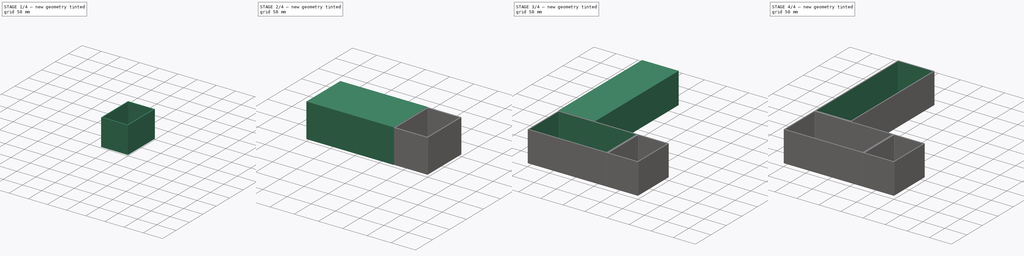
[diagram: build sequence overview — one tinted view per stage of 4, left to right]
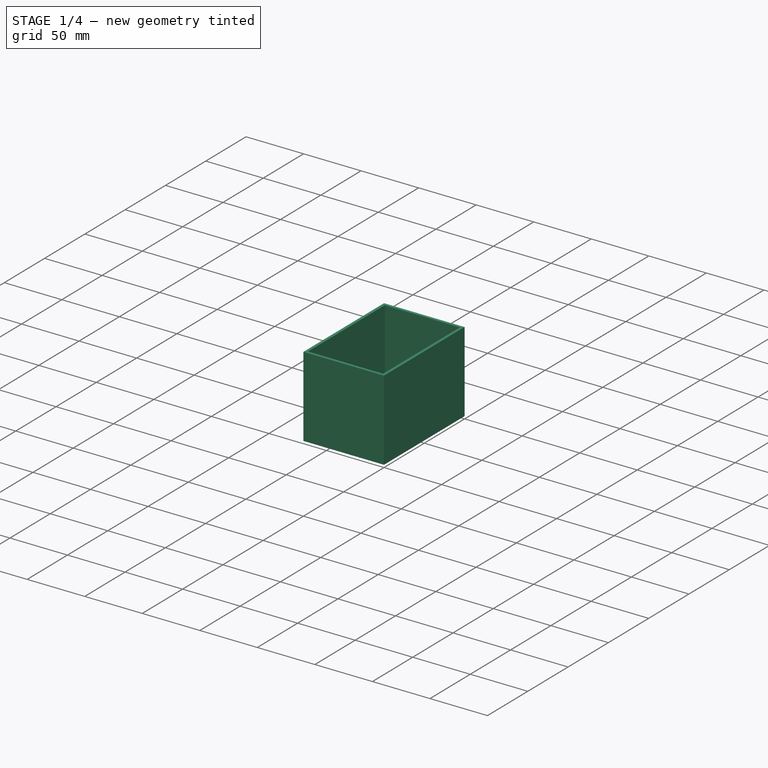
[diagram: stage 1 of 4 — iso view after this stage's code; geometry added in this stage tinted green]
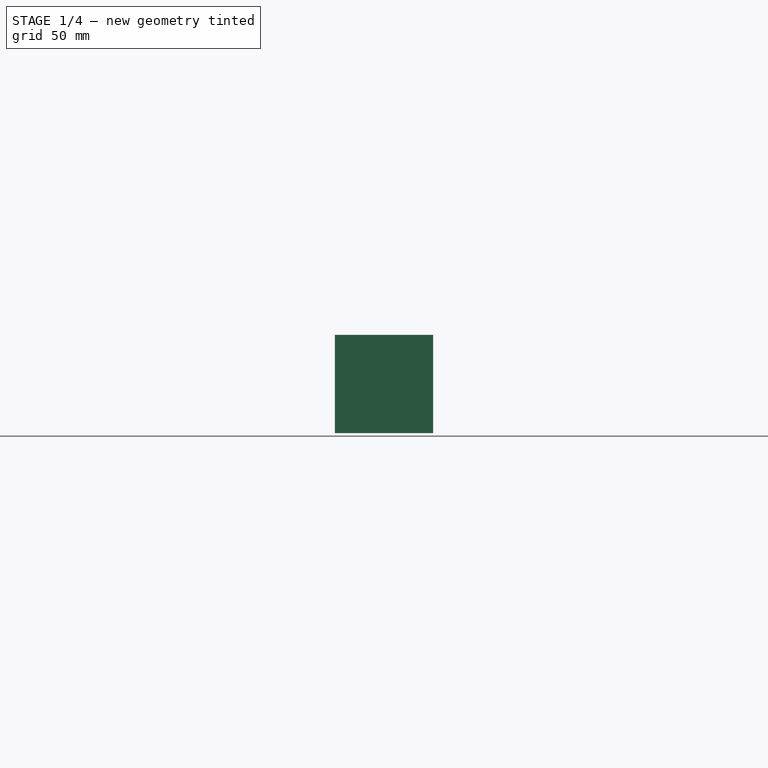
[diagram: stage 1 of 4 — front view after this stage's code; geometry added in this stage tinted green]
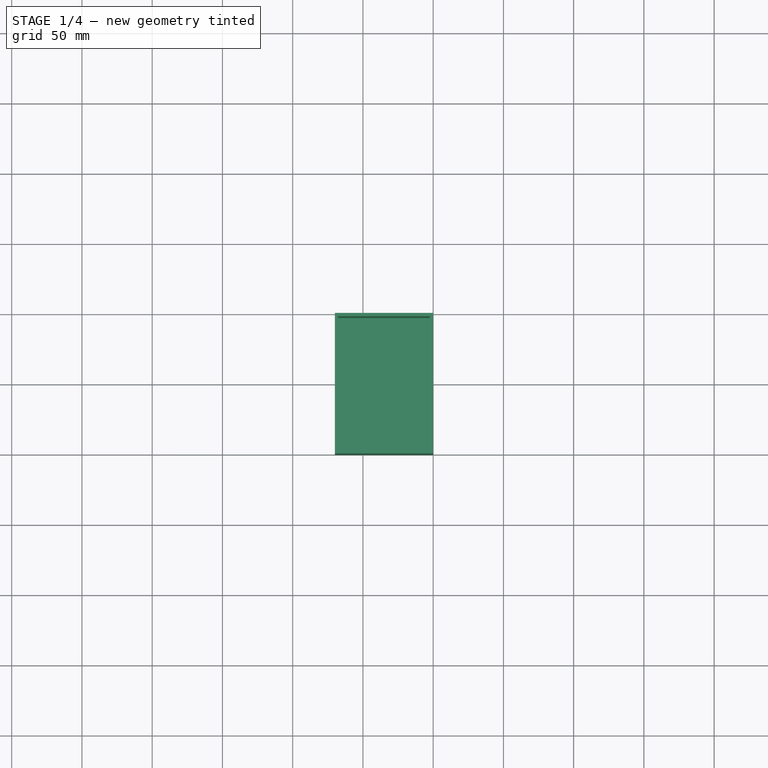
[diagram: stage 1 of 4 — top view after this stage's code; geometry added in this stage tinted green]
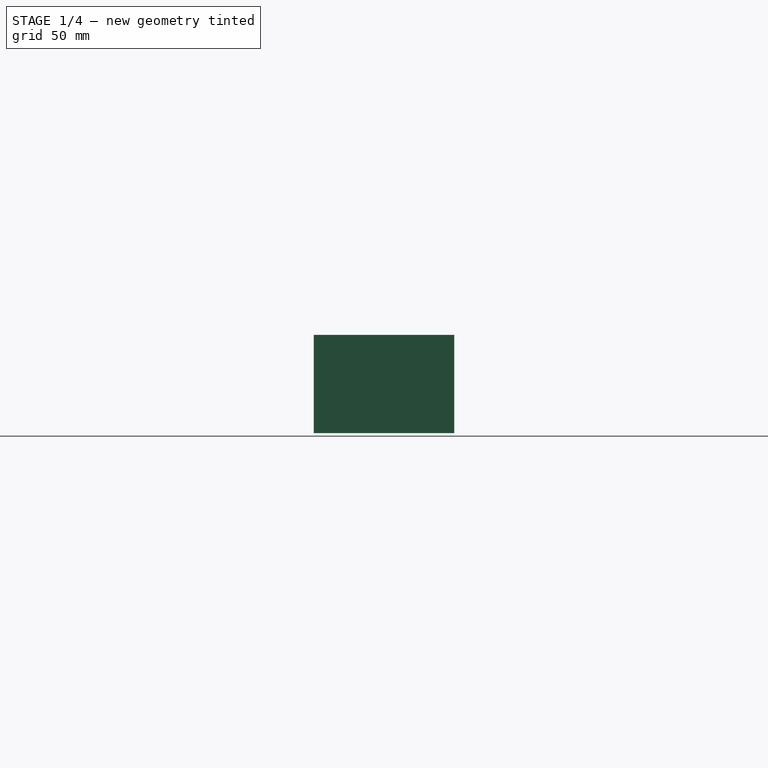
[diagram: stage 1 of 4 — right view after this stage's code; geometry added in this stage tinted green]
FCSTD DOCUMENT  (FreeCAD 0.20R29410 (Git))
Label: caravan_drawer_inlay
License: All rights reserved
LicenseURL: http://en.wikipedia.org/wiki/All_rights_reserved
objects: Sketcher::SketchObject×6, PartDesign::Fillet×4, PartDesign::Pad×3, PartDesign::Pocket×3, PartDesign::Body×3, Spreadsheet::Sheet×1
note: 29 computed .brp shape members not serialized (recipe doc carries the construction recipe); baked Part::Feature solids carry a one-line shape summary decoded from their .brp

FEATURE [PartDesign::Body] Body001  label="cuterly_bottom"
  Group = -> [Sketch002,Pad001,Sketch003,Pocket001,Fillet001]
  Origin = -> Origin001
  Tip = -> Fillet001
FEATURE [Sketcher::SketchObject] Sketch004
  FullyConstrained = true
  MapMode = 5
  Support = -> [XY_Plane002]
  expr: Constraints[11] = <<dimensions>>.cuterly_bottom_width
  expr: Constraints[8] = <<dimensions>>.storage_width
  expr: Constraints[9] = <<dimensions>>.storage_length
  sketch-geometry (4):
    g0: LineSegment StartX=180 StartY=0 StartZ=0 EndX=250 EndY=0 EndZ=0
    g1: LineSegment StartX=250 StartY=0 StartZ=0 EndX=250 EndY=-100 EndZ=0
    g2: LineSegment StartX=250 StartY=-100 StartZ=0 EndX=180 EndY=-100 EndZ=0
    g3: LineSegment StartX=180 StartY=-100 StartZ=0 EndX=180 EndY=0 EndZ=0
  constraints (12):
    c: Coincident(g0,g1)
    c: Coincident(g1,g2)
    c: Coincident(g2,g3)
    c: Coincident(g3,g0)
    c: Horizontal(g0)
    c: Horizontal(g2)
    c: Vertical(g1)
    c: Vertical(g3)
    c: DistanceX(g2,g2) = 70
    c: DistanceY(g1,g1) = 100
    c: PointOnObject(g0,g-1)
    c: DistanceX(g-1,g0) = 180
FEATURE [PartDesign::Pad] Pad002
  Direction = (0,0,1)
  Length = 70
  Length2 = 10
  Profile = -> Sketch004
  ReferenceAxis = -> Sketch004 [N_Axis]
  Type = 0
  expr: Length = <<dimensions>>.drawer_height
FEATURE [Sketcher::SketchObject] Sketch005
  AttachmentOffset = pos=(0,0,70) rot=(0,0,1;0rad)
  FullyConstrained = true
  MapMode = 5
  Placement = pos=(0,0,70) rot=(0,0,1;0rad)
  Support = -> [XY_Plane002]
  expr: .AttachmentOffset.Base.z = <<dimensions>>.drawer_height
  expr: Constraints[10] = <<dimensions>>.storage_width - 2 * <<dimensions>>.inlay_thickness
  expr: Constraints[11] = <<dimensions>>.storage_length - 2 * <<dimensions>>.inlay_thickness
  expr: Constraints[8] = <<dimensions>>.inlay_thickness
  expr: Constraints[9] = <<dimensions>>.cuterly_bottom_width + <<dimensions>>.inlay_thickness
  sketch-geometry (4):
    g0: LineSegment StartX=182.4 StartY=-2.4 StartZ=0 EndX=247.6 EndY=-2.4 EndZ=0
    g1: LineSegment StartX=247.6 StartY=-2.4 StartZ=0 EndX=247.6 EndY=-97.6 EndZ=0
    g2: LineSegment StartX=247.6 StartY=-97.6 StartZ=0 EndX=182.4 EndY=-97.6 EndZ=0
    g3: LineSegment StartX=182.4 StartY=-97.6 StartZ=0 EndX=182.4 EndY=-2.4 EndZ=0
  constraints (12):
    c: Coincident(g0,g1)
    c: Coincident(g1,g2)
    c: Coincident(g2,g3)
    c: Coincident(g3,g0)
    c: Horizontal(g0)
    c: Horizontal(g2)
    c: Vertical(g1)
    c: Vertical(g3)
    c: DistanceY(g0,g-1) = 2.4
    c: DistanceX(g-1,g0) = 182.4
    c: DistanceX(g2,g2) = 65.2
    c: DistanceY(g1,g1) = 95.2
FEATURE [PartDesign::Pocket] Pocket002
  BaseFeature = -> Pad002
  Direction = (0,0,-1)
  Length = 67.6
  Length2 = 5
  Profile = -> Sketch005
  ReferenceAxis = -> Sketch005 [N_Axis]
  Type = 0
  expr: Length = <<dimensions>>.drawer_height - <<dimensions>>.inlay_thickness
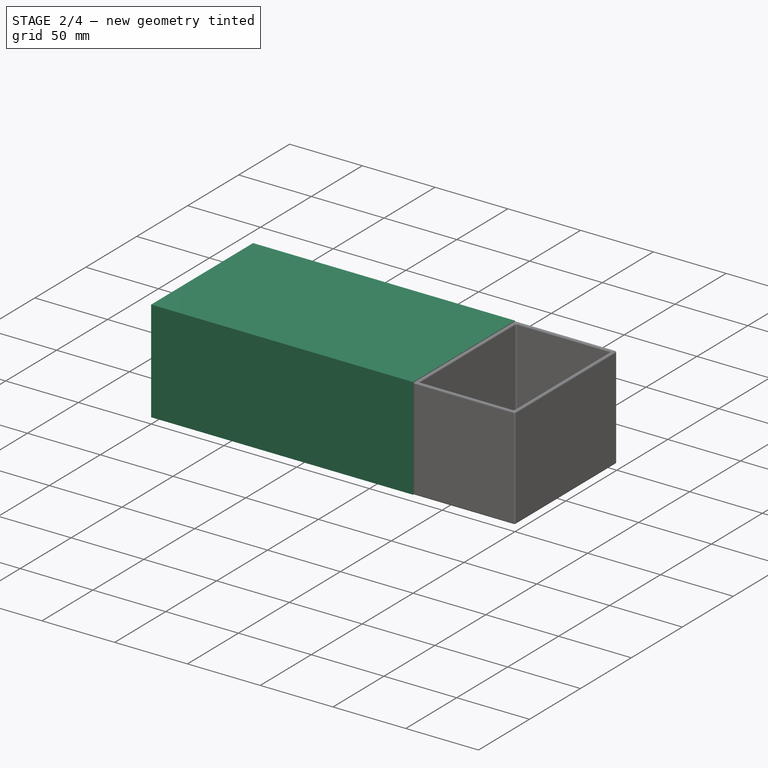
[diagram: stage 2 of 4 — iso view after this stage's code; geometry added in this stage tinted green]
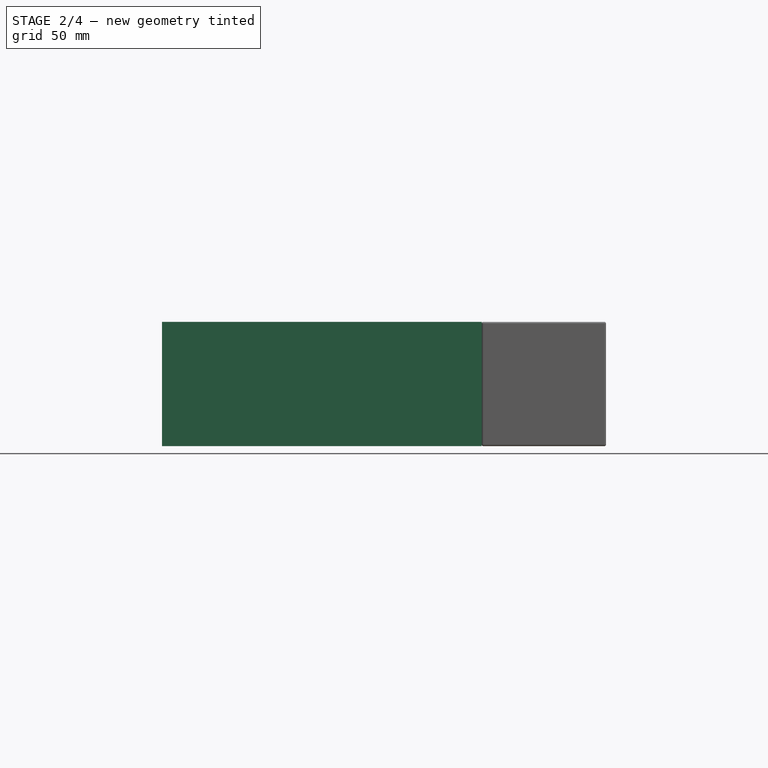
[diagram: stage 2 of 4 — front view after this stage's code; geometry added in this stage tinted green]
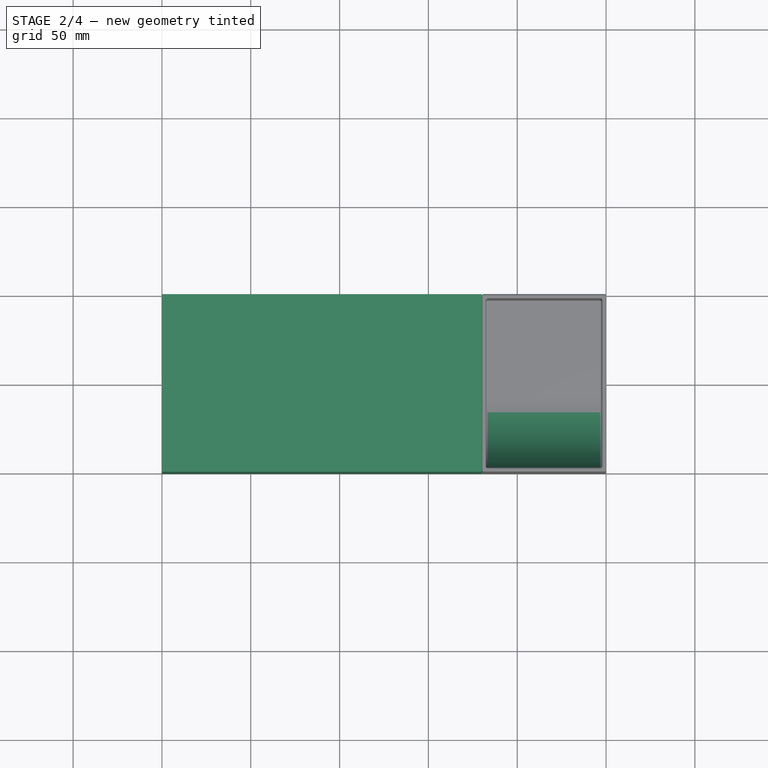
[diagram: stage 2 of 4 — top view after this stage's code; geometry added in this stage tinted green]
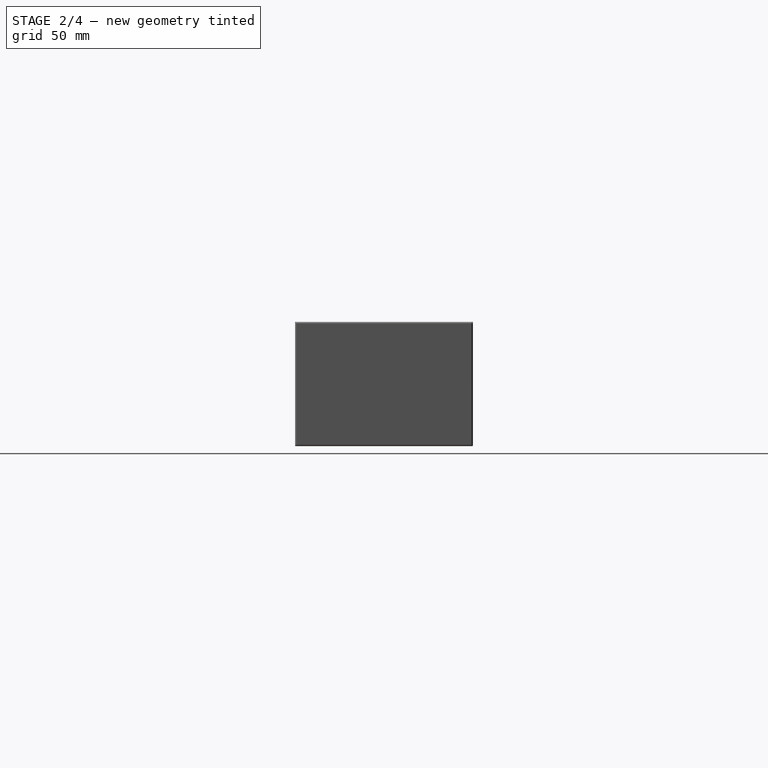
[diagram: stage 2 of 4 — right view after this stage's code; geometry added in this stage tinted green]
FEATURE [PartDesign::Body] Body  label="cuterly_top"
  Group = -> [Sketch,Pad,Sketch001,Pocket,Fillet]
  Origin = -> Origin
  Tip = -> Fillet
FEATURE [Sketcher::SketchObject] Sketch002
  FullyConstrained = true
  MapMode = 5
  Support = -> [XY_Plane001]
  expr: Constraints[10] = <<dimensions>>.cuterly_bottom_width
  expr: Constraints[9] = <<dimensions>>.cuterly_bottom_length
  sketch-geometry (4):
    g0: LineSegment StartX=0 StartY=0 StartZ=0 EndX=180 EndY=0 EndZ=0
    g1: LineSegment StartX=180 StartY=0 StartZ=0 EndX=180 EndY=-100 EndZ=0
    g2: LineSegment StartX=180 StartY=-100 StartZ=0 EndX=0 EndY=-100 EndZ=0
    g3: LineSegment StartX=0 StartY=-100 StartZ=0 EndX=0 EndY=0 EndZ=0
  constraints (11):
    c: Coincident(g0,g1)
    c: Coincident(g1,g2)
    c: Coincident(g2,g3)
    c: Coincident(g3,g0)
    c: Horizontal(g0)
    c: Horizontal(g2)
    c: Vertical(g1)
    c: Vertical(g3)
    c: Coincident(g0,g-1)
    c: DistanceY(g3,g3) = 100
    c: DistanceX(g2,g2) = 180
FEATURE [PartDesign::Pad] Pad001
  Direction = (0,0,1)
  Length = 70
  Length2 = 10
  Profile = -> Sketch002
  ReferenceAxis = -> Sketch002 [N_Axis]
  Type = 0
  expr: Length = <<dimensions>>.drawer_height
FEATURE [PartDesign::Fillet] Fillet002
  Base = -> Pocket002 [Edge21]
  BaseFeature = -> Pocket002
  Radius = 40
  SupportTransform = false
  UseAllEdges = false
FEATURE [PartDesign::Fillet] Fillet003
  Base = -> Fillet002 [Edge23,Edge14,Edge25,Edge27,Edge12,Edge3,Edge8,Edge15,Edge13,Edge16,Edge11,Edge26,Edge21,Edge22,Edge24,Edge20,Edge4,Edge5,Edge18,Edge19,Edge17]
  BaseFeature = -> Fillet002
  Radius = 1
  SupportTransform = false
  UseAllEdges = false
FEATURE [PartDesign::Body] Body002  label="storage"
  Group = -> [Sketch004,Pad002,Sketch005,Pocket002,Fillet002,Fillet003]
  Origin = -> Origin002
  Tip = -> Fillet003
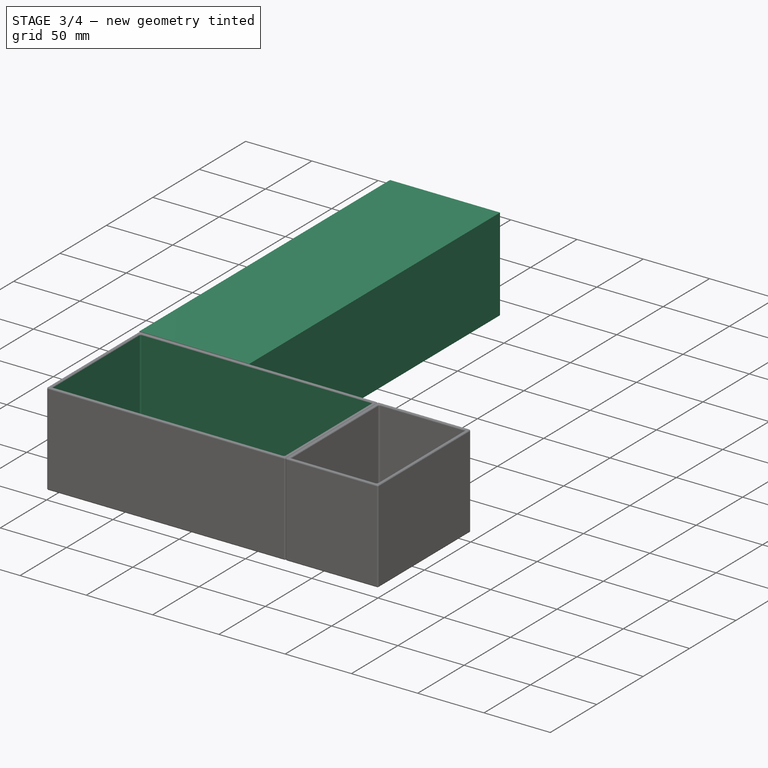
[diagram: stage 3 of 4 — iso view after this stage's code; geometry added in this stage tinted green]
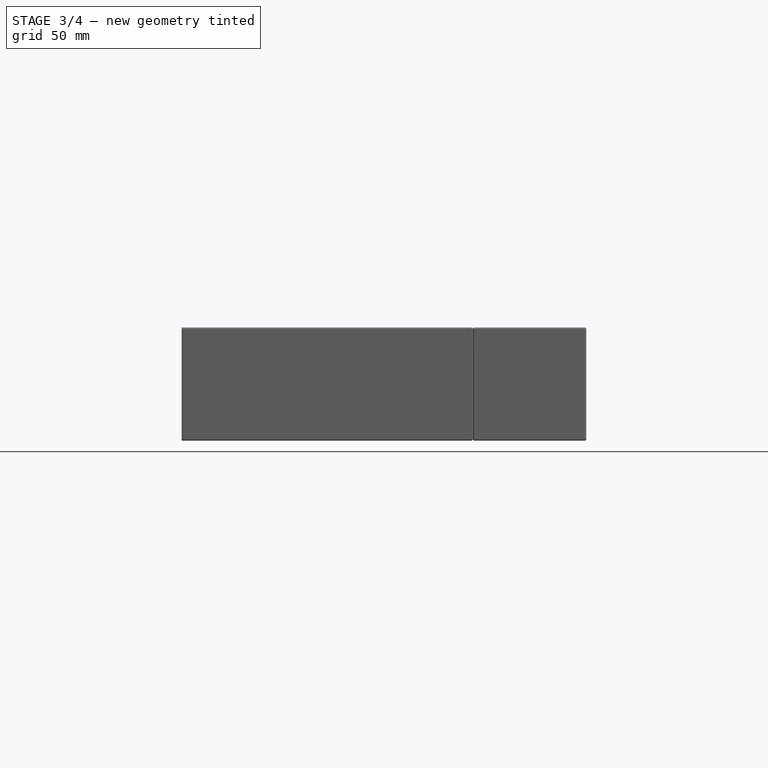
[diagram: stage 3 of 4 — front view after this stage's code; geometry added in this stage tinted green]
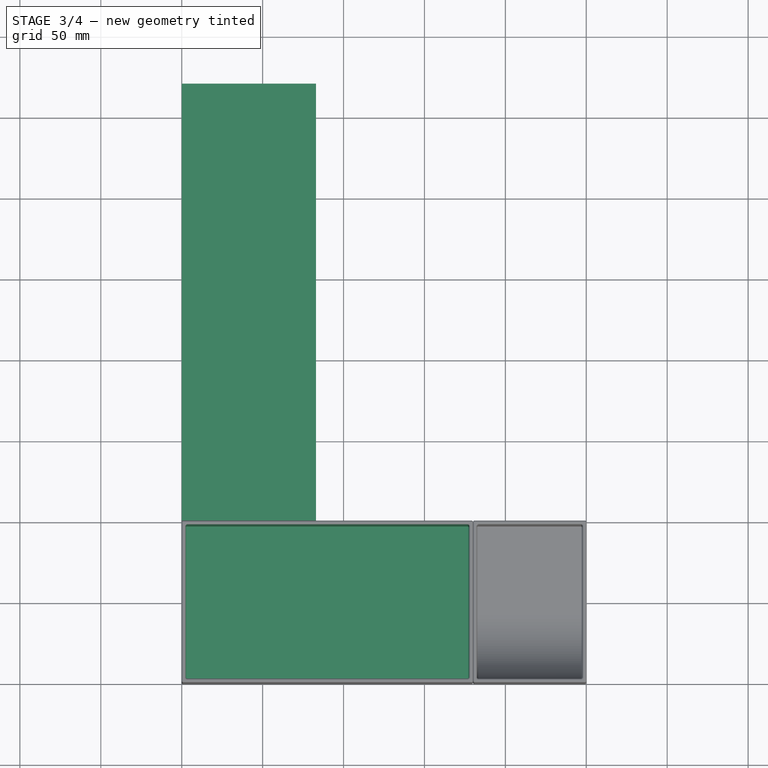
[diagram: stage 3 of 4 — top view after this stage's code; geometry added in this stage tinted green]
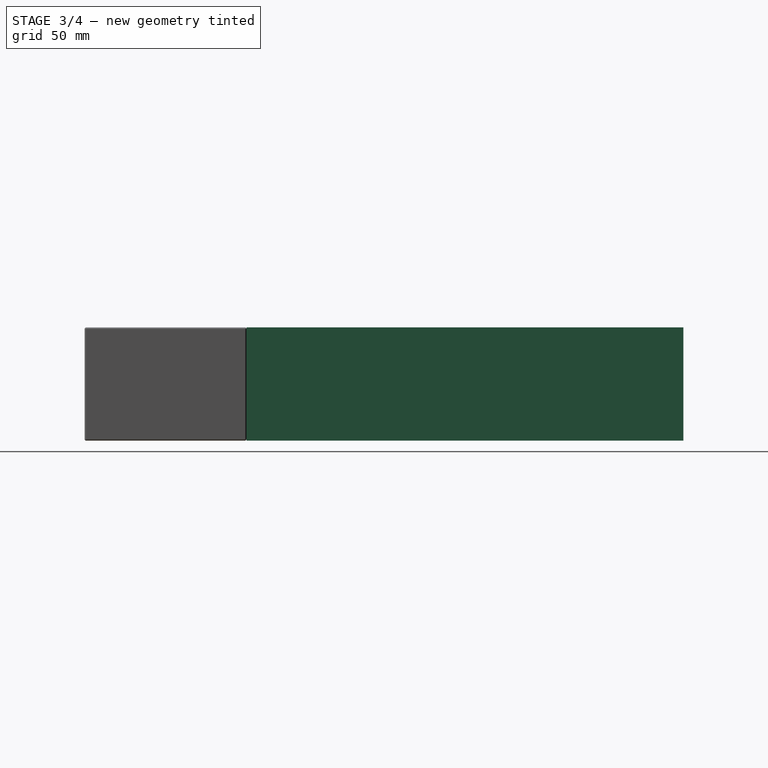
[diagram: stage 3 of 4 — right view after this stage's code; geometry added in this stage tinted green]
FEATURE [Sketcher::SketchObject] Sketch
  FullyConstrained = true
  MapMode = 5
  Support = -> [XY_Plane]
  expr: Constraints[10] = <<dimensions>>.cuterly_top_length
  expr: Constraints[9] = <<dimensions>>.cuterly_top_width
  sketch-geometry (4):
    g0: LineSegment StartX=0 StartY=0 StartZ=0 EndX=83 EndY=0 EndZ=0
    g1: LineSegment StartX=83 StartY=0 StartZ=0 EndX=83 EndY=270 EndZ=0
    g2: LineSegment StartX=83 StartY=270 StartZ=0 EndX=0 EndY=270 EndZ=0
    g3: LineSegment StartX=0 StartY=270 StartZ=0 EndX=0 EndY=0 EndZ=0
  constraints (11):
    c: Coincident(g0,g1)
    c: Coincident(g1,g2)
    c: Coincident(g2,g3)
    c: Coincident(g3,g0)
    c: Horizontal(g0)
    c: Horizontal(g2)
    c: Vertical(g1)
    c: Vertical(g3)
    c: Coincident(g0,g-1)
    c: DistanceX(g0,g0) = 83
    c: DistanceY(g3,g3) = 270
FEATURE [Spreadsheet::Sheet] Spreadsheet  label="dimensions"
  cells = A1=drawer_length; B1(drawer_length)==370mm; A2=drawer_width; B2(drawer_width)==250mm; A3=drawer_height; B3(drawer_height)==70mm; A4=cuterly_top_length; B4(cuterly_top_length)==270mm; A5=cuterly_top_width; B5(cuterly_top_width)==83mm; A6=cuterly_bottom_length; B6(cuterly_bottom_length)==100mm; A7=cuterly_bottom_width; B7(cuterly_bottom_width)==180mm; A8=storage_length; B8(storage_length)==100mm; A9=storage_width; B9(storage_width)==70mm; A10=inlay_thickness; B10(inlay_thickness)==2.4mm
FEATURE [PartDesign::Pad] Pad
  Direction = (0,0,1)
  Length = 70
  Length2 = 10
  Profile = -> Sketch
  ReferenceAxis = -> Sketch [N_Axis]
  Type = 0
  expr: Length = <<dimensions>>.drawer_height
FEATURE [Sketcher::SketchObject] Sketch003
  AttachmentOffset = pos=(0,0,70) rot=(0,0,1;0rad)
  FullyConstrained = true
  MapMode = 5
  Placement = pos=(0,0,70) rot=(0,0,1;0rad)
  Support = -> [XY_Plane001]
  expr: .AttachmentOffset.Base.z = <<dimensions>>.drawer_height
  expr: Constraints[10] = <<dimensions>>.inlay_thickness
  expr: Constraints[11] = <<dimensions>>.inlay_thickness
  expr: Constraints[8] = <<dimensions>>.cuterly_bottom_width - 2 * <<dimensions>>.inlay_thickness
  expr: Constraints[9] = <<dimensions>>.cuterly_bottom_length - 2 * <<dimensions>>.inlay_thickness
  sketch-geometry (4):
    g0: LineSegment StartX=2.4 StartY=-2.4 StartZ=0 EndX=177.6 EndY=-2.4 EndZ=0
    g1: LineSegment StartX=177.6 StartY=-2.4 StartZ=0 EndX=177.6 EndY=-97.6 EndZ=0
    g2: LineSegment StartX=177.6 StartY=-97.6 StartZ=0 EndX=2.4 EndY=-97.6 EndZ=0
    g3: LineSegment StartX=2.4 StartY=-97.6 StartZ=0 EndX=2.4 EndY=-2.4 EndZ=0
  constraints (12):
    c: Coincident(g0,g1)
    c: Coincident(g1,g2)
    c: Coincident(g2,g3)
    c: Coincident(g3,g0)
    c: Horizontal(g0)
    c: Horizontal(g2)
    c: Vertical(g1)
    c: Vertical(g3)
    c: DistanceX(g2,g2) = 175.2
    c: DistanceY(g3,g3) = 95.2
    c: DistanceX(g-1,g0) = 2.4
    c: DistanceY(g0,g-1) = 2.4
FEATURE [PartDesign::Pocket] Pocket001
  BaseFeature = -> Pad001
  Direction = (0,0,-1)
  Length = 67.6
  Length2 = 5
  Profile = -> Sketch003
  ReferenceAxis = -> Sketch003 [N_Axis]
  Type = 0
  expr: Length = <<dimensions>>.drawer_height - <<dimensions>>.inlay_thickness
FEATURE [PartDesign::Fillet] Fillet001
  Base = -> Pocket001 [Edge13,Edge7,Edge16,Edge4,Edge12,Edge14,Edge5,Edge11,Edge6,Edge8,Edge10,Edge15,Edge9,Edge2,Edge3,Edge1,Edge17,Edge19,Edge21,Edge18,Edge24,Edge22,Edge23,Edge20]
  BaseFeature = -> Pocket001
  Radius = 1
  SupportTransform = false
  UseAllEdges = false
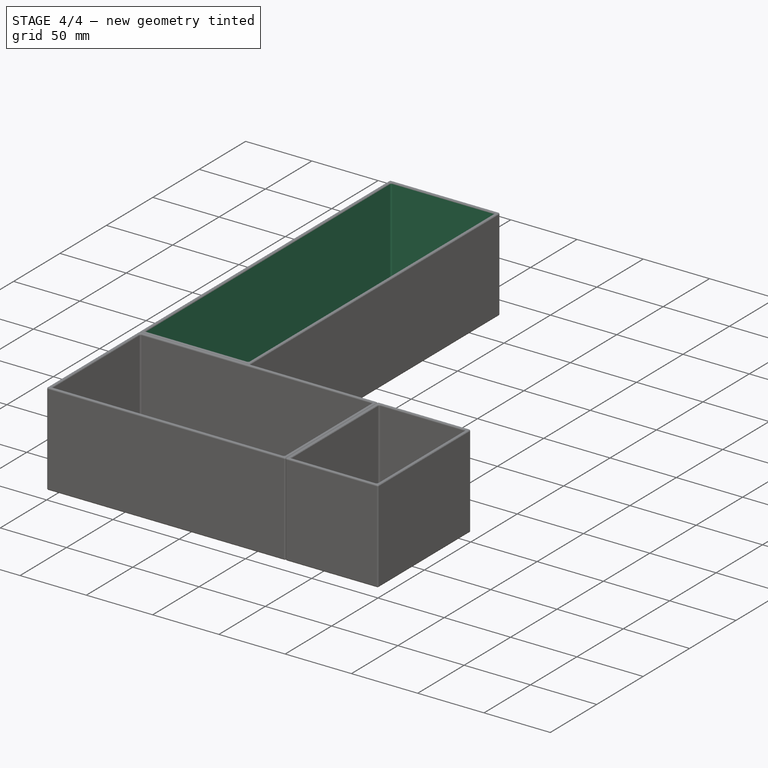
[diagram: stage 4 of 4 — iso view after this stage's code; geometry added in this stage tinted green]
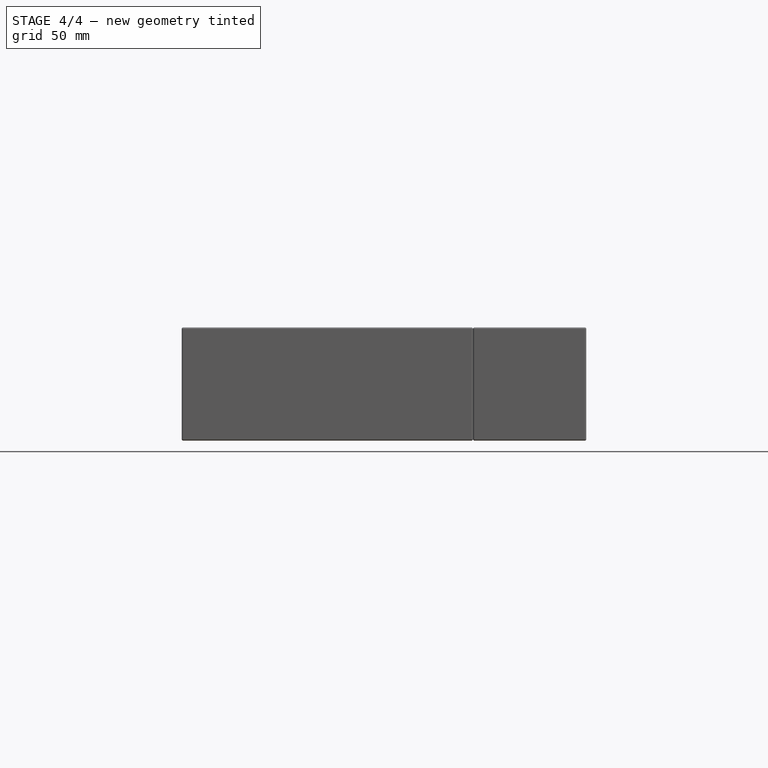
[diagram: stage 4 of 4 — front view after this stage's code; geometry added in this stage tinted green]
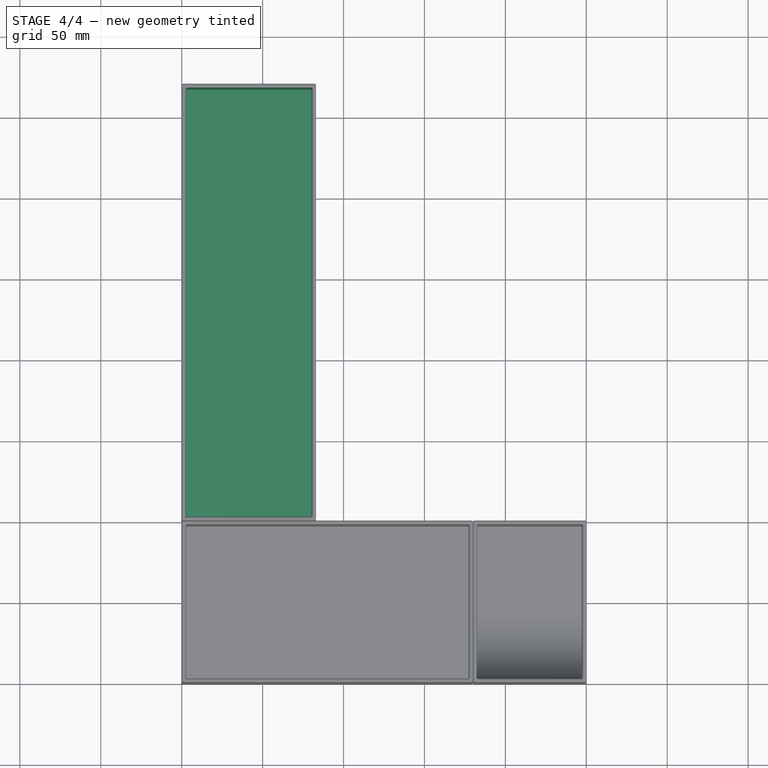
[diagram: stage 4 of 4 — top view after this stage's code; geometry added in this stage tinted green]
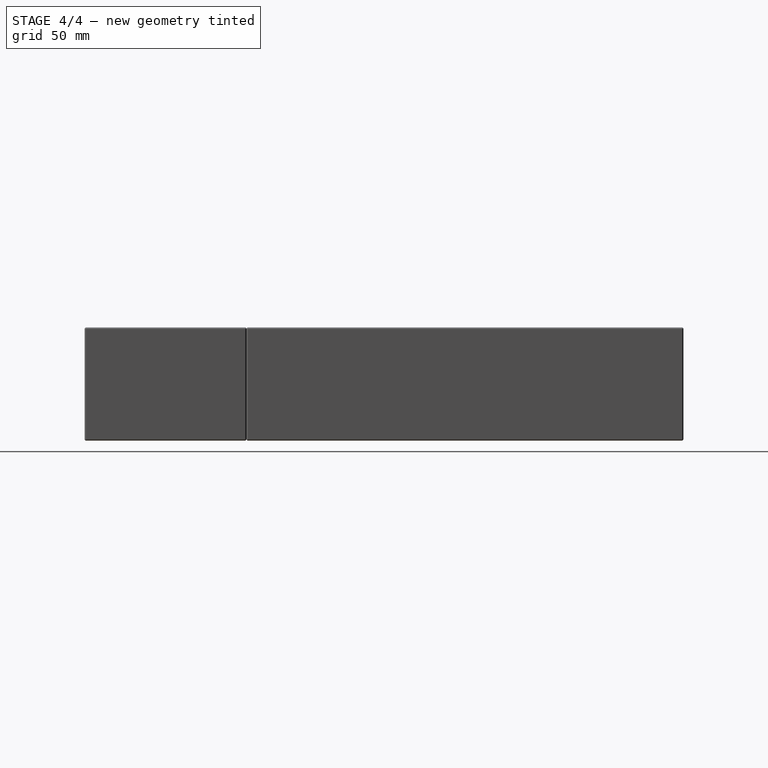
[diagram: stage 4 of 4 — right view after this stage's code; geometry added in this stage tinted green]
FEATURE [Sketcher::SketchObject] Sketch001
  AttachmentOffset = pos=(0,0,70) rot=(0,0,1;0rad)
  FullyConstrained = true
  MapMode = 5
  Placement = pos=(0,0,70) rot=(0,0,1;0rad)
  Support = -> [XY_Plane]
  expr: .AttachmentOffset.Base.z = <<dimensions>>.drawer_height
  expr: Constraints[10] = <<dimensions>>.inlay_thickness
  expr: Constraints[11] = <<dimensions>>.inlay_thickness
  expr: Constraints[8] = <<dimensions>>.cuterly_top_length - 2 * <<dimensions>>.inlay_thickness
  expr: Constraints[9] = <<dimensions>>.cuterly_top_width - 2 * <<dimensions>>.inlay_thickness
  sketch-geometry (4):
    g0: LineSegment StartX=2.4 StartY=2.4 StartZ=0 EndX=80.6 EndY=2.4 EndZ=0
    g1: LineSegment StartX=80.6 StartY=2.4 StartZ=0 EndX=80.6 EndY=267.6 EndZ=0
    g2: LineSegment StartX=80.6 StartY=267.6 StartZ=0 EndX=2.4 EndY=267.6 EndZ=0
    g3: LineSegment StartX=2.4 StartY=267.6 StartZ=0 EndX=2.4 EndY=2.4 EndZ=0
  constraints (12):
    c: Coincident(g0,g1)
    c: Coincident(g1,g2)
    c: Coincident(g2,g3)
    c: Coincident(g3,g0)
    c: Horizontal(g0)
    c: Horizontal(g2)
    c: Vertical(g1)
    c: Vertical(g3)
    c: DistanceY(g3,g3) = 265.2
    c: DistanceX(g0,g0) = 78.2
    c: DistanceX(g-1,g0) = 2.4
    c: DistanceY(g-1,g0) = 2.4
FEATURE [PartDesign::Pocket] Pocket
  BaseFeature = -> Pad
  Direction = (0,0,-1)
  Length = 67.6
  Length2 = 5
  Profile = -> Sketch001
  ReferenceAxis = -> Sketch001 [N_Axis]
  Type = 0
  expr: Length = <<dimensions>>.drawer_height - <<dimensions>>.inlay_thickness
FEATURE [PartDesign::Fillet] Fillet
  Base = -> Pocket [Edge2,Edge4,Edge3,Edge1,Edge7,Edge6,Edge5,Edge12,Edge8,Edge11,Edge9,Edge10,Edge14,Edge13,Edge18,Edge21,Edge19,Edge24,Edge16,Edge22,Edge15,Edge20,Edge23]
  BaseFeature = -> Pocket
  Radius = 1
  SupportTransform = false
  UseAllEdges = false
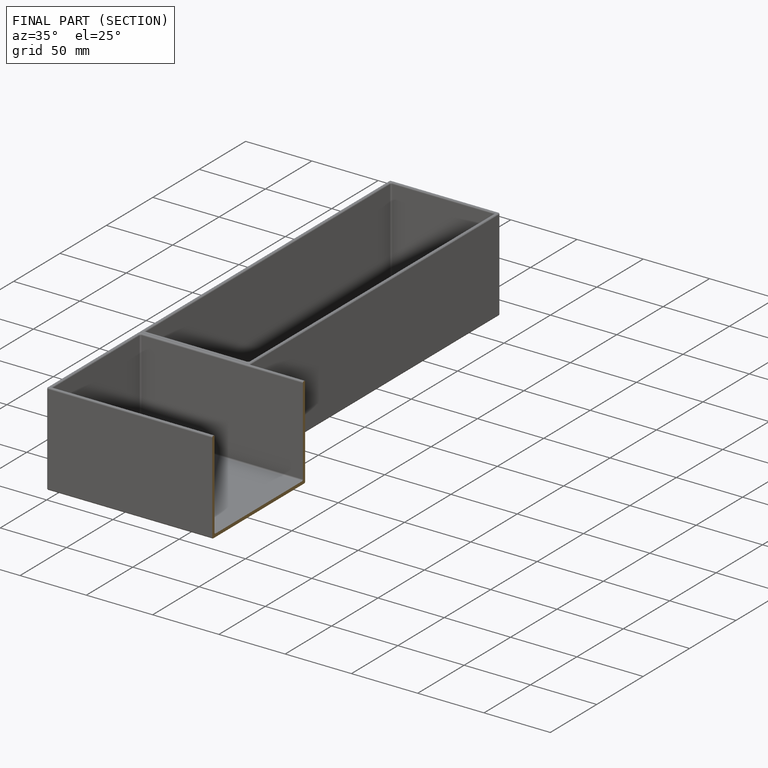
[diagram: finished part — half-section view (interior)]
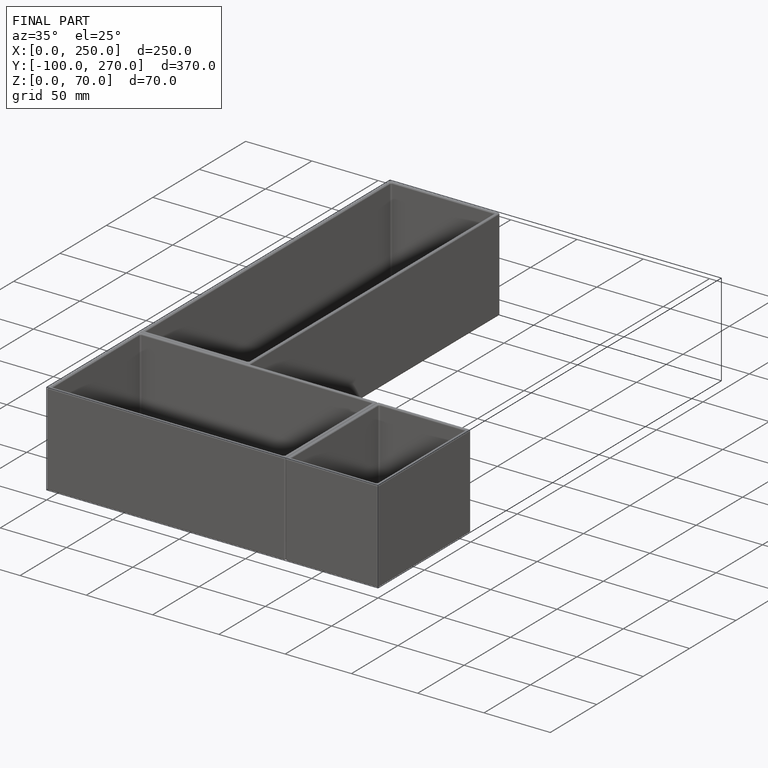
[diagram: finished part — iso view with bounding-box wireframe]
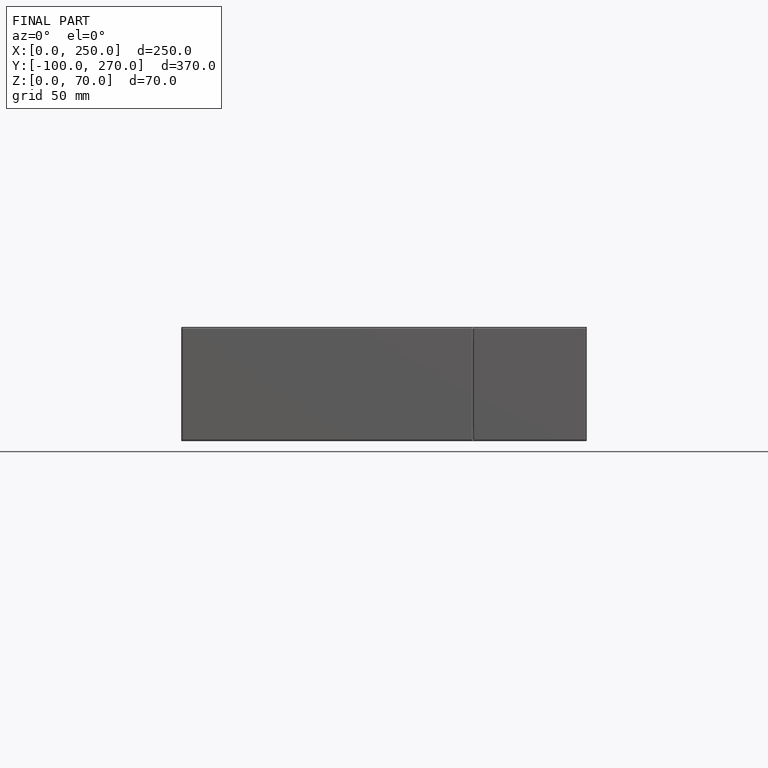
[diagram: finished part — front view with bounding-box wireframe]
